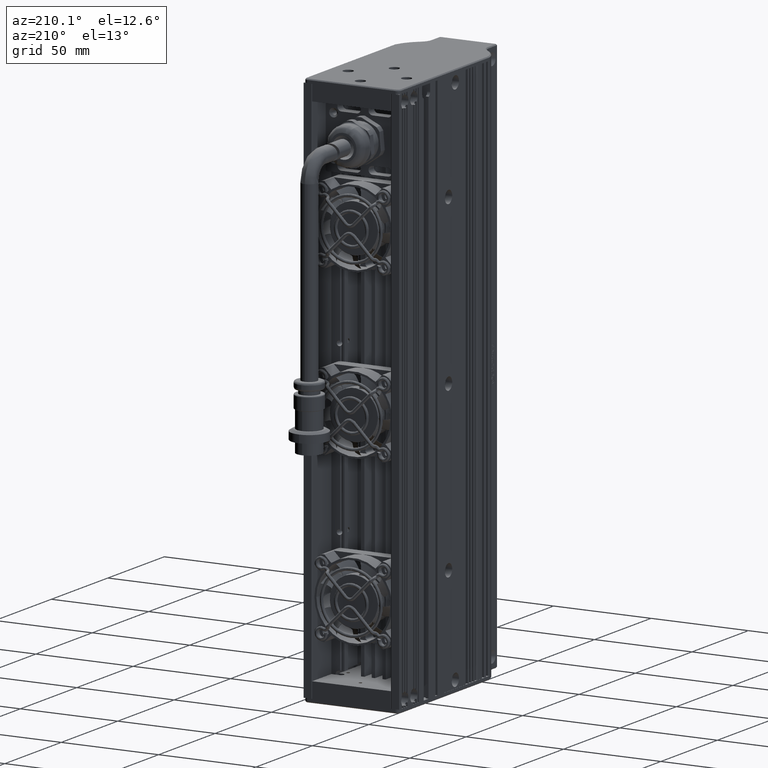
[diagram: clean part render]
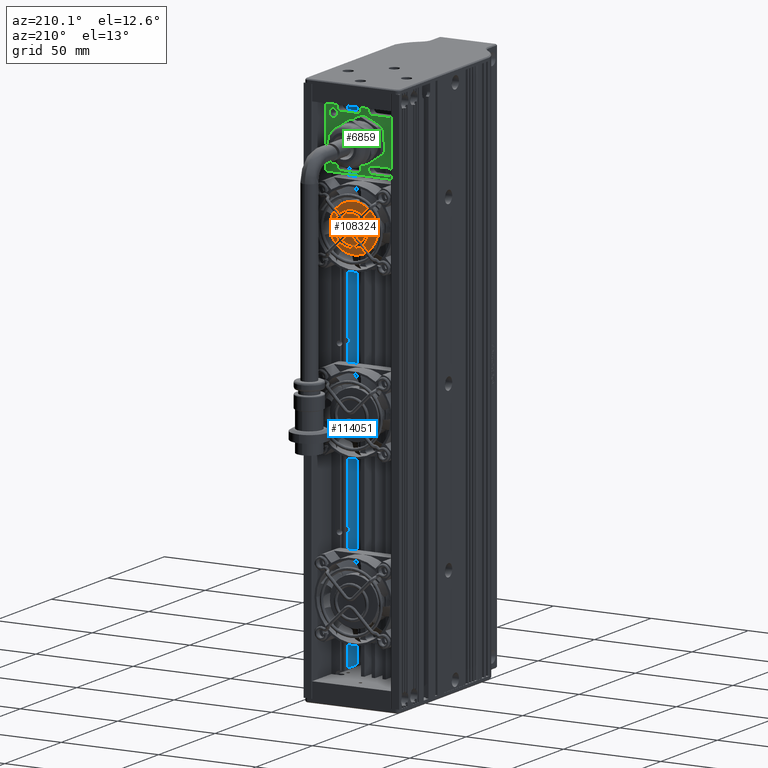
[diagram: same view with three faces highlighted in distinct colors, each labeled with its STEP entity id]
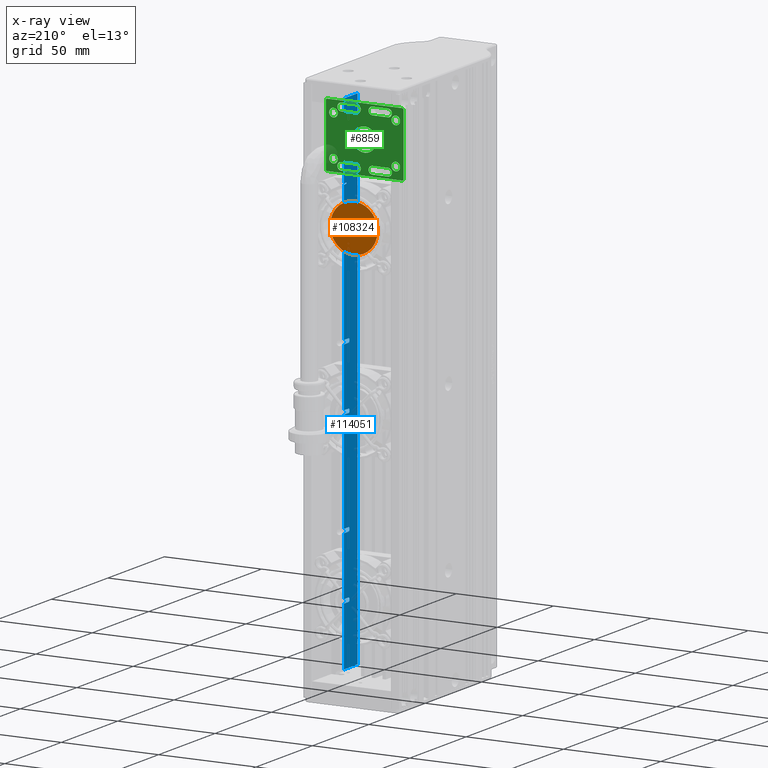
[diagram: x-ray of the same camera — body ghosted, the three highlighted faces saturated]
A machine part, auxiliary view with three faces highlighted in distinct colors.
The next image is the same camera in x-ray (body ghosted, the three faces saturated) — at least one of them is partly hidden behind the body in this view.
Their STEP definitions:

[orange] entity #108324 — the highlighted planar face has unit normal (0, 1, 0).
#13605 = CARTESIAN_POINT ( 'NONE',  ( -49.61201180637552000, 41.50452420306966400, 76.00000000000002800 ) ) ;
#14027 = CARTESIAN_POINT ( 'NONE',  ( -49.61201180637549900, 41.50452420306966400, 100.4000000000000300 ) ) ;
#15420 = PLANE ( 'NONE',  #55164 ) ;
#15845 = CARTESIAN_POINT ( 'NONE',  ( -37.41201180637546700, 41.50452420306965700, 63.60000000000001600 ) ) ;
#17464 = EDGE_LOOP ( 'NONE', ( #116713, #63177 ) ) ;
#30858 =( BOUNDED_CURVE ( )  B_SPLINE_CURVE ( 3, ( #53139, #91117, #102401, #32128 ),
 .UNSPECIFIED., .F., .F. ) 
 B_SPLINE_CURVE_WITH_KNOTS ( ( 4, 4 ),
 ( 0.0000000000000000000, 1.000000000000000000 ),
 .UNSPECIFIED. ) 
 CURVE ( )  GEOMETRIC_REPRESENTATION_ITEM ( )  RATIONAL_B_SPLINE_CURVE ( ( 1.000000000000000000, 0.3333333333333333700, 0.3333333333333333700, 1.000000000000000000 ) ) 
 REPRESENTATION_ITEM ( '' )  );
#32128 = CARTESIAN_POINT ( 'NONE',  ( -25.21201180637551800, 41.50452420306965000, 76.00000000000000000 ) ) ;
#35694 = DIRECTION ( 'NONE',  ( 7.709882115452475200E-016, 1.000000000000000000, 0.0000000000000000000 ) ) ;
#37364 = VERTEX_POINT ( 'NONE', #122455 ) ;
#53139 = CARTESIAN_POINT ( 'NONE',  ( -49.61201180637552000, 41.50452420306966400, 76.00000000000002800 ) ) ;
#55164 = AXIS2_PLACEMENT_3D ( 'NONE', #15845, #35694, #95164 ) ;
#61745 = EDGE_CURVE ( 'NONE', #37364, #92009, #30858, .T. ) ;
#62714 = CARTESIAN_POINT ( 'NONE',  ( -25.21201180637548900, 41.50452420306965000, 100.3999999999999900 ) ) ;
#63177 = ORIENTED_EDGE ( 'NONE', *, *, #115103, .F. ) ;
#68207 = CARTESIAN_POINT ( 'NONE',  ( -25.21201180637551800, 41.50452420306965000, 76.00000000000000000 ) ) ;
#91117 = CARTESIAN_POINT ( 'NONE',  ( -49.61201180637556300, 41.50452420306966400, 51.60000000000003700 ) ) ;
#92009 = VERTEX_POINT ( 'NONE', #68207 ) ;
#92039 = CARTESIAN_POINT ( 'NONE',  ( -25.21201180637551800, 41.50452420306965000, 76.00000000000000000 ) ) ;
#94938 =( BOUNDED_CURVE ( )  B_SPLINE_CURVE ( 3, ( #92039, #62714, #14027, #13605 ),
 .UNSPECIFIED., .F., .F. ) 
 B_SPLINE_CURVE_WITH_KNOTS ( ( 4, 4 ),
 ( 0.0000000000000000000, 1.000000000000000000 ),
 .UNSPECIFIED. ) 
 CURVE ( )  GEOMETRIC_REPRESENTATION_ITEM ( )  RATIONAL_B_SPLINE_CURVE ( ( 1.000000000000000000, 0.3333333333333333700, 0.3333333333333333700, 1.000000000000000000 ) ) 
 REPRESENTATION_ITEM ( '' )  );
#95164 = DIRECTION ( 'NONE',  ( 1.000000000000000000, -7.709882115452475200E-016, -7.709882115452475200E-016 ) ) ;
#102401 = CARTESIAN_POINT ( 'NONE',  ( -25.21201180637555000, 41.50452420306965000, 51.60000000000001600 ) ) ;
#108324 = ADVANCED_FACE ( 'NONE', ( #123741 ), #15420, .T. ) ;
#115103 = EDGE_CURVE ( 'NONE', #92009, #37364, #94938, .T. ) ;
#116713 = ORIENTED_EDGE ( 'NONE', *, *, #61745, .F. ) ;
#122455 = CARTESIAN_POINT ( 'NONE',  ( -49.61201180637552000, 41.50452420306966400, 76.00000000000002800 ) ) ;
#123741 = FACE_OUTER_BOUND ( 'NONE', #17464, .T. ) ;

[blue] entity #114051 — the highlighted planar face has unit normal (-1, 0, 0).
#1376 = EDGE_CURVE ( 'NONE', #109032, #85294, #88587, .T. ) ;
#1497 = CARTESIAN_POINT ( 'NONE',  ( -22.16201180637544600, 2.004524203069662400, -98.00000000000000000 ) ) ;
#1502 = VERTEX_POINT ( 'NONE', #117954 ) ;
#1575 = CARTESIAN_POINT ( 'NONE',  ( -22.16201180637544600, 24.00452420306966100, -14.00000000000000900 ) ) ;
#1865 = CARTESIAN_POINT ( 'NONE',  ( -22.16201180637544600, 24.00452420306966100, 18.00000000000000400 ) ) ;
#3675 = LINE ( 'NONE', #90593, #36164 ) ;
#4479 = CARTESIAN_POINT ( 'NONE',  ( -22.16201180637543900, 21.77441886626611400, 90.90786262034238500 ) ) ;
#4958 = VERTEX_POINT ( 'NONE', #85363 ) ;
#5211 = CARTESIAN_POINT ( 'NONE',  ( -22.16201180637544600, 24.00452420306966100, -66.00000000000000000 ) ) ;
#5788 = CARTESIAN_POINT ( 'NONE',  ( -22.16201180637544600, 19.35640198461898700, -67.68050296101182500 ) ) ;
#5891 = CARTESIAN_POINT ( 'NONE',  ( -22.16201180637544300, 19.24354415349486700, 19.34867306075772900 ) ) ;
#6866 = VECTOR ( 'NONE', #69041, 1000.000000000000000 ) ;
#7495 = CARTESIAN_POINT ( 'NONE',  ( -22.16201180637544600, 24.00452420306966100, 140.0000000000000000 ) ) ;
#7722 = CARTESIAN_POINT ( 'NONE',  ( -22.16201180637544600, 19.50452420306785900, -100.0000000000008700 ) ) ;
#7953 = DIRECTION ( 'NONE',  ( -0.0000000000000000000, -1.000000000000000000, 0.0000000000000000000 ) ) ;
#7998 = EDGE_CURVE ( 'NONE', #120357, #115823, #32894, .T. ) ;
#8529 = VERTEX_POINT ( 'NONE', #1865 ) ;
#8794 = VERTEX_POINT ( 'NONE', #103768 ) ;
#9042 = CARTESIAN_POINT ( 'NONE',  ( -22.16201180637544600, 2.004524203069662400, 18.00000000000000400 ) ) ;
#9596 = ORIENTED_EDGE ( 'NONE', *, *, #25809, .T. ) ;
#10293 = VERTEX_POINT ( 'NONE', #97841 ) ;
#12065 = EDGE_CURVE ( 'NONE', #45138, #41774, #92734, .T. ) ;
#13058 = ORIENTED_EDGE ( 'NONE', *, *, #7998, .T. ) ;
#13165 = EDGE_CURVE ( 'NONE', #4958, #113018, #36529, .T. ) ;
#13665 = CARTESIAN_POINT ( 'NONE',  ( -22.16201180637544600, 19.50452420306361400, -12.00000000000001400 ) ) ;
#13739 = EDGE_CURVE ( 'NONE', #14582, #109032, #3675, .T. ) ;
#14045 = CARTESIAN_POINT ( 'NONE',  ( -22.16201180637544600, 19.50452420303862100, -66.00000000000000000 ) ) ;
#14119 = AXIS2_PLACEMENT_3D ( 'NONE', #32036, #73730, #14759 ) ;
#14439 = CARTESIAN_POINT ( 'NONE',  ( -22.16201180637544600, 21.80452420308598200, 90.72161178186191000 ) ) ;
#14518 = CARTESIAN_POINT ( 'NONE',  ( -22.16201180637544600, 24.00452420306966100, 140.0000000000000000 ) ) ;
#14582 = VERTEX_POINT ( 'NONE', #71741 ) ;
#14759 = DIRECTION ( 'NONE',  ( 0.0000000000000000000, 0.0000000000000000000, 1.000000000000000000 ) ) ;
#15333 = CARTESIAN_POINT ( 'NONE',  ( -22.16201180637545000, 19.27197850113411100, -67.43230094389953400 ) ) ;
#15358 = ORIENTED_EDGE ( 'NONE', *, *, #1376, .T. ) ;
#15863 = CARTESIAN_POINT ( 'NONE',  ( -22.16201180637544300, 19.20409340479567800, 19.17483694745068600 ) ) ;
#16176 = EDGE_CURVE ( 'NONE', #103040, #127871, #46966, .T. ) ;
#16410 = EDGE_CURVE ( 'NONE', #32923, #54114, #74753, .T. ) ;
#16664 = CARTESIAN_POINT ( 'NONE',  ( -22.16201180637544600, 19.35640198466788300, -13.68050296099678700 ) ) ;
#17984 = CARTESIAN_POINT ( 'NONE',  ( -22.16201180637544600, 19.50452420305986600, 17.99999999999528600 ) ) ;
#18535 = CARTESIAN_POINT ( 'NONE',  ( -22.16201180637544600, 19.42830135190585100, -98.15857015905210400 ) ) ;
#18953 = CARTESIAN_POINT ( 'NONE',  ( -22.16201180637544600, 2.004524203069662400, 90.72161178185849900 ) ) ;
#19205 = CARTESIAN_POINT ( 'NONE',  ( -22.16201180637544600, 21.80452420303035100, 69.72161178185029900 ) ) ;
#19445 = DIRECTION ( 'NONE',  ( 0.0000000000000000000, 1.000000000000000000, -0.0000000000000000000 ) ) ;
#19774 = CARTESIAN_POINT ( 'NONE',  ( -22.16201180637544600, 2.004524203069662400, 70.27838821814150100 ) ) ;
#21673 = EDGE_CURVE ( 'NONE', #104798, #107078, #118473, .T. ) ;
#21752 = EDGE_CURVE ( 'NONE', #107078, #1502, #34886, .T. ) ;
#22077 = PLANE ( 'NONE',  #14119 ) ;
#22326 = ORIENTED_EDGE ( 'NONE', *, *, #13739, .T. ) ;
#22845 = CARTESIAN_POINT ( 'NONE',  ( -22.16201180637544600, 24.00452420306966100, -12.00000000000001400 ) ) ;
#23228 = CARTESIAN_POINT ( 'NONE',  ( -22.16201180637544600, 24.00452420306966100, 140.0000000000000000 ) ) ;
#25359 = CARTESIAN_POINT ( 'NONE',  ( -22.16201180637544600, 19.50452420305759600, 19.99999999999997500 ) ) ;
#25385 = CARTESIAN_POINT ( 'NONE',  ( -22.16201180637544600, 21.80452420302863100, 70.27838821814150100 ) ) ;
#25809 = EDGE_CURVE ( 'NONE', #111209, #84913, #87968, .T. ) ;
#25874 = VERTEX_POINT ( 'NONE', #40868 ) ;
#26548 = EDGE_CURVE ( 'NONE', #106580, #88991, #83299, .T. ) ;
#27294 = LINE ( 'NONE', #27427, #88925 ) ;
#27427 = CARTESIAN_POINT ( 'NONE',  ( -22.16201180637544600, 2.004524203069662400, -130.0000000000000000 ) ) ;
#28116 = EDGE_CURVE ( 'NONE', #77341, #8529, #96356, .T. ) ;
#28457 = CARTESIAN_POINT ( 'NONE',  ( -22.16201180637544300, 19.20409340483163900, -98.82516305255025200 ) ) ;
#28957 = CARTESIAN_POINT ( 'NONE',  ( -22.16201180635331300, 21.78526959821460800, 70.18630086223062400 ) ) ;
#29001 = ORIENTED_EDGE ( 'NONE', *, *, #79901, .T. ) ;
#31293 = EDGE_CURVE ( 'NONE', #25874, #32923, #35750, .T. ) ;
#32036 = CARTESIAN_POINT ( 'NONE',  ( -22.16201180637544600, 2.004524203069662400, 140.0000000000000000 ) ) ;
#32894 = LINE ( 'NONE', #18953, #113145 ) ;
#32923 = VERTEX_POINT ( 'NONE', #73711 ) ;
#33443 = VECTOR ( 'NONE', #100317, 1000.000000000000000 ) ;
#33525 = CARTESIAN_POINT ( 'NONE',  ( -22.16201180637543900, 19.24354415356739200, -12.65132693925075500 ) ) ;
#33557 = EDGE_CURVE ( 'NONE', #111280, #77341, #45697, .T. ) ;
#34369 = DIRECTION ( 'NONE',  ( -0.0000000000000000000, -0.0000000000000000000, -1.000000000000000000 ) ) ;
#34886 = LINE ( 'NONE', #1497, #57958 ) ;
#35651 = CARTESIAN_POINT ( 'NONE',  ( -22.16201180637544300, 19.27197850118843200, -13.43230094388795800 ) ) ;
#35750 = LINE ( 'NONE', #75325, #119224 ) ;
#36019 = CARTESIAN_POINT ( 'NONE',  ( -22.16201180637544600, 19.20409413780448900, -67.08742370660320400 ) ) ;
#36164 = VECTOR ( 'NONE', #71573, 1000.000000000000000 ) ;
#36529 = LINE ( 'NONE', #40782, #33443 ) ;
#37290 = DIRECTION ( 'NONE',  ( -0.0000000000000000000, -0.0000000000000000000, -1.000000000000000000 ) ) ;
#37317 = CARTESIAN_POINT ( 'NONE',  ( -22.16201180637544600, 19.42835517175886300, -13.84154180503074200 ) ) ;
#37425 = DIRECTION ( 'NONE',  ( -0.0000000000000000000, -0.0000000000000000000, -1.000000000000000000 ) ) ;
#37762 = CARTESIAN_POINT ( 'NONE',  ( -22.16201180637544600, 24.00452420306966100, -98.00000000000000000 ) ) ;
#38253 = DIRECTION ( 'NONE',  ( -0.0000000000000000000, -0.0000000000000000000, -1.000000000000000000 ) ) ;
#38659 = ORIENTED_EDGE ( 'NONE', *, *, #94060, .T. ) ;
#38861 = CARTESIAN_POINT ( 'NONE',  ( -22.16201180637544600, 21.80452420303035100, 69.72161178185029900 ) ) ;
#39683 = VECTOR ( 'NONE', #37425, 1000.000000000000000 ) ;
#40782 = CARTESIAN_POINT ( 'NONE',  ( -22.16201180637544600, 2.004524203069662400, 91.27838821814148700 ) ) ;
#40795 = VERTEX_POINT ( 'NONE', #22845 ) ;
#40868 = CARTESIAN_POINT ( 'NONE',  ( -22.16201180637544600, 19.50452420306785900, -100.0000000000008700 ) ) ;
#41774 = VERTEX_POINT ( 'NONE', #98054 ) ;
#42484 = CARTESIAN_POINT ( 'NONE',  ( -22.16201180637544600, 21.80452420308669700, 91.27838821814148700 ) ) ;
#43423 = CARTESIAN_POINT ( 'NONE',  ( -22.16201180637544300, 19.20409340487981700, -12.82516305255716900 ) ) ;
#45059 = CARTESIAN_POINT ( 'NONE',  ( -22.16201180637543900, 19.24354415350887800, -66.65132693924934400 ) ) ;
#45138 = VERTEX_POINT ( 'NONE', #99109 ) ;
#45175 = CARTESIAN_POINT ( 'NONE',  ( -22.16201180637544600, 19.35659622424978100, 19.68110591036902000 ) ) ;
#45584 = LINE ( 'NONE', #14518, #71745 ) ;
#45697 = B_SPLINE_CURVE_WITH_KNOTS ( 'NONE', 3,
 ( #25359, #65014, #45175, #5891, #15863, #114699, #93446, #97283, #56749, #125937, #76127, #17984 ),
 .UNSPECIFIED., .F., .F.,
 ( 4, 2, 2, 2, 2, 4 ),
 ( 5.672349479352040000E-015, 0.0005262199254034081700, 0.001052439850801144000, 0.001315549813500006800, 0.001578659776198869300, 0.002104879701596598600 ),
 .UNSPECIFIED. ) ;
#46444 = ORIENTED_EDGE ( 'NONE', *, *, #90548, .T. ) ;
#46566 = DIRECTION ( 'NONE',  ( 0.0000000000000000000, 1.000000000000000000, -0.0000000000000000000 ) ) ;
#46966 = LINE ( 'NONE', #23228, #70030 ) ;
#50261 = CARTESIAN_POINT ( 'NONE',  ( -22.16201180637544600, 24.00452420306966100, 69.72161178185851300 ) ) ;
#51300 = ORIENTED_EDGE ( 'NONE', *, *, #16410, .T. ) ;
#51701 = VECTOR ( 'NONE', #38253, 1000.000000000000000 ) ;
#52331 = VECTOR ( 'NONE', #59119, 1000.000000000000000 ) ;
#52873 = CARTESIAN_POINT ( 'NONE',  ( -22.16201180637544600, 2.004524203069662400, -12.00000000000001100 ) ) ;
#53205 = EDGE_CURVE ( 'NONE', #10293, #8794, #78499, .T. ) ;
#53284 = CARTESIAN_POINT ( 'NONE',  ( -22.16201180637544600, 19.21380403890912400, -13.17633270588486600 ) ) ;
#53481 = ORIENTED_EDGE ( 'NONE', *, *, #31293, .T. ) ;
#53769 = DIRECTION ( 'NONE',  ( -0.0000000000000000000, -0.0000000000000000000, -1.000000000000000000 ) ) ;
#54114 = VERTEX_POINT ( 'NONE', #64641 ) ;
#54527 = DIRECTION ( 'NONE',  ( 0.0000000000000000000, 1.000000000000000000, -0.0000000000000000000 ) ) ;
#56749 = CARTESIAN_POINT ( 'NONE',  ( -22.16201180637544600, 19.27197850112206700, 18.56769905610674300 ) ) ;
#57771 = EDGE_CURVE ( 'NONE', #113018, #120357, #94883, .T. ) ;
#57958 = VECTOR ( 'NONE', #89452, 1000.000000000000000 ) ;
#59119 = DIRECTION ( 'NONE',  ( -0.0000000000000000000, -1.000000000000000000, 0.0000000000000000000 ) ) ;
#59324 = CARTESIAN_POINT ( 'NONE',  ( -22.16201180637544600, 19.50452420305759600, 19.99999999999997500 ) ) ;
#59924 = ORIENTED_EDGE ( 'NONE', *, *, #74250, .T. ) ;
#60414 = CARTESIAN_POINT ( 'NONE',  ( -22.16201180637544600, 2.004524203069662400, -66.00000000000000000 ) ) ;
#60520 = CARTESIAN_POINT ( 'NONE',  ( -22.16201180637544600, 19.50452420305986600, 17.99999999999528600 ) ) ;
#61307 = EDGE_CURVE ( 'NONE', #115823, #111209, #45584, .T. ) ;
#62706 = CARTESIAN_POINT ( 'NONE',  ( -22.16201180638463000, 21.78526959830729500, 91.18630086221600100 ) ) ;
#64379 = CARTESIAN_POINT ( 'NONE',  ( -22.16201180637544600, 24.00452420306966100, 140.0000000000000000 ) ) ;
#64641 = CARTESIAN_POINT ( 'NONE',  ( -22.16201180637544300, 24.00452420306966400, -130.0000000000000000 ) ) ;
#64783 = ORIENTED_EDGE ( 'NONE', *, *, #72604, .T. ) ;
#64904 = CARTESIAN_POINT ( 'NONE',  ( -22.16201180637544600, 19.20409340481908000, -66.82516305255832400 ) ) ;
#65014 = CARTESIAN_POINT ( 'NONE',  ( -22.16201180636849000, 19.42830135189007700, 19.84142984095366900 ) ) ;
#66016 = LINE ( 'NONE', #74604, #76720 ) ;
#67089 = ORIENTED_EDGE ( 'NONE', *, *, #16176, .T. ) ;
#67125 = CARTESIAN_POINT ( 'NONE',  ( -22.16201180637544600, 2.004524203069662400, 19.99999999999997500 ) ) ;
#67530 = CARTESIAN_POINT ( 'NONE',  ( -22.16201180637544600, 24.00452420306966100, 70.27838821814150100 ) ) ;
#68077 = CARTESIAN_POINT ( 'NONE',  ( -22.16201180637544600, 19.35640198464794500, -99.68050296099707500 ) ) ;
#68634 = CARTESIAN_POINT ( 'NONE',  ( -22.16201180637544600, 2.004524203069662400, 130.0000000000000000 ) ) ;
#69041 = DIRECTION ( 'NONE',  ( 0.0000000000000000000, 1.000000000000000000, -0.0000000000000000000 ) ) ;
#69169 = VECTOR ( 'NONE', #53769, 1000.000000000000000 ) ;
#69868 = ORIENTED_EDGE ( 'NONE', *, *, #125570, .T. ) ;
#70030 = VECTOR ( 'NONE', #123376, 1000.000000000000000 ) ;
#71573 = DIRECTION ( 'NONE',  ( 0.0000000000000000000, -0.0000000000000000000, 1.000000000000000000 ) ) ;
#71741 = CARTESIAN_POINT ( 'NONE',  ( -22.16201180637544300, 11.95452420306966300, -130.0000000000000000 ) ) ;
#71745 = VECTOR ( 'NONE', #34369, 1000.000000000000000 ) ;
#72115 = ORIENTED_EDGE ( 'NONE', *, *, #21752, .T. ) ;
#72604 = EDGE_CURVE ( 'NONE', #85294, #4958, #83048, .T. ) ;
#73039 = CARTESIAN_POINT ( 'NONE',  ( -22.16201180637544600, 19.24793158253240900, -13.34835558666692800 ) ) ;
#73207 = B_SPLINE_CURVE_WITH_KNOTS ( 'NONE', 3,
 ( #87082, #28957, #97071, #126563, #107070, #38861 ),
 .UNSPECIFIED., .F., .F.,
 ( 4, 2, 4 ),
 ( 1.260064158383260400E-014, 0.0002786419507183689800, 0.0005572839014241372600 ),
 .UNSPECIFIED. ) ;
#73711 = CARTESIAN_POINT ( 'NONE',  ( -22.16201180637544600, 24.00452420306966100, -100.0000000000000000 ) ) ;
#73730 = DIRECTION ( 'NONE',  ( -1.000000000000000000, 0.0000000000000000000, 0.0000000000000000000 ) ) ;
#74250 = EDGE_CURVE ( 'NONE', #40795, #45138, #107219, .T. ) ;
#74301 = CARTESIAN_POINT ( 'NONE',  ( -22.16201180637544600, 19.24793158247644300, -67.34835558667737100 ) ) ;
#74604 = CARTESIAN_POINT ( 'NONE',  ( -22.16201180637544600, 2.004524203069662400, -14.00000000000001200 ) ) ;
#74726 = CARTESIAN_POINT ( 'NONE',  ( -22.16201180637544600, 19.21380403885050100, -67.17633270589323000 ) ) ;
#74753 = LINE ( 'NONE', #97308, #51701 ) ;
#75325 = CARTESIAN_POINT ( 'NONE',  ( -22.16201180637544600, 2.004524203069662400, -100.0000000000000000 ) ) ;
#76127 = CARTESIAN_POINT ( 'NONE',  ( -22.16201180637544600, 19.42835517173174200, 18.15845819496228200 ) ) ;
#76299 = B_SPLINE_CURVE_WITH_KNOTS ( 'NONE', 3,
 ( #77535, #18535, #87446, #126502, #28457, #127361, #107845, #78366, #88288, #68077, #97423, #7722 ),
 .UNSPECIFIED., .F., .F.,
 ( 4, 2, 2, 2, 2, 4 ),
 ( 1.115932929006392600E-015, 0.0005262199253936781100, 0.001052439850786240100, 0.001315549813482542000, 0.001578659776178843900, 0.002104879701571411700 ),
 .UNSPECIFIED. ) ;
#76720 = VECTOR ( 'NONE', #83274, 1000.000000000000000 ) ;
#77005 = CARTESIAN_POINT ( 'NONE',  ( -22.16201180637544600, 24.00452420306966100, 140.0000000000000000 ) ) ;
#77341 = VERTEX_POINT ( 'NONE', #60520 ) ;
#77535 = CARTESIAN_POINT ( 'NONE',  ( -22.16201180637544600, 19.50452420306744400, -98.00000000000000000 ) ) ;
#77728 = EDGE_CURVE ( 'NONE', #41774, #106580, #66016, .T. ) ;
#78234 = ORIENTED_EDGE ( 'NONE', *, *, #13165, .T. ) ;
#78366 = CARTESIAN_POINT ( 'NONE',  ( -22.16201180637544600, 19.24793158249223500, -99.34835558666738100 ) ) ;
#78499 = B_SPLINE_CURVE_WITH_KNOTS ( 'NONE', 3,
 ( #14045, #125402, #105094, #45059, #64904, #36019, #74726, #74301, #15333, #5788, #113737, #94204 ),
 .UNSPECIFIED., .F., .F.,
 ( 4, 2, 2, 2, 2, 4 ),
 ( 1.457393051238396500E-014, 0.0005262199254078926500, 0.001052439850801211200, 0.001315549813497870700, 0.001578659776194529900, 0.002104879701587888500 ),
 .UNSPECIFIED. ) ;
#78500 = LINE ( 'NONE', #60414, #52331 ) ;
#79404 = CARTESIAN_POINT ( 'NONE',  ( -22.16201180637544600, 21.80452420308669700, 91.27838821814148700 ) ) ;
#79901 = EDGE_CURVE ( 'NONE', #98169, #103040, #101829, .T. ) ;
#80857 = VECTOR ( 'NONE', #112523, 1000.000000000000000 ) ;
#82590 = CARTESIAN_POINT ( 'NONE',  ( -22.16201180637544300, 19.42830135191221400, -12.15857015905242200 ) ) ;
#82894 = FACE_OUTER_BOUND ( 'NONE', #89989, .T. ) ;
#83048 = LINE ( 'NONE', #112970, #69169 ) ;
#83274 = DIRECTION ( 'NONE',  ( 0.0000000000000000000, 1.000000000000000000, -0.0000000000000000000 ) ) ;
#83299 = LINE ( 'NONE', #64379, #125091 ) ;
#84703 = ORIENTED_EDGE ( 'NONE', *, *, #123780, .T. ) ;
#84913 = VERTEX_POINT ( 'NONE', #25385 ) ;
#85033 = ORIENTED_EDGE ( 'NONE', *, *, #21673, .T. ) ;
#85290 = ORIENTED_EDGE ( 'NONE', *, *, #53205, .T. ) ;
#85294 = VERTEX_POINT ( 'NONE', #103362 ) ;
#85363 = CARTESIAN_POINT ( 'NONE',  ( -22.16201180637544600, 24.00452420306966100, 91.27838821814148700 ) ) ;
#85673 = DIRECTION ( 'NONE',  ( 0.0000000000000000000, 1.000000000000000000, -0.0000000000000000000 ) ) ;
#86704 = LINE ( 'NONE', #67125, #122420 ) ;
#87082 = CARTESIAN_POINT ( 'NONE',  ( -22.16201180637544600, 21.80452420302863100, 70.27838821814150100 ) ) ;
#87288 = LINE ( 'NONE', #90402, #115191 ) ;
#87446 = CARTESIAN_POINT ( 'NONE',  ( -22.16201180637544600, 19.35659622427601800, -98.31889408963439800 ) ) ;
#87968 = LINE ( 'NONE', #19774, #97305 ) ;
#88288 = CARTESIAN_POINT ( 'NONE',  ( -22.16201180637544300, 19.27197850115269200, -99.43230094388826500 ) ) ;
#88333 = ORIENTED_EDGE ( 'NONE', *, *, #105765, .T. ) ;
#88587 = LINE ( 'NONE', #68634, #6866 ) ;
#88925 = VECTOR ( 'NONE', #7953, 1000.000000000000000 ) ;
#88991 = VERTEX_POINT ( 'NONE', #5211 ) ;
#89452 = DIRECTION ( 'NONE',  ( -0.0000000000000000000, -1.000000000000000000, 0.0000000000000000000 ) ) ;
#89527 = DIRECTION ( 'NONE',  ( 0.0000000000000000000, 1.000000000000000000, -0.0000000000000000000 ) ) ;
#89989 = EDGE_LOOP ( 'NONE', ( #51300, #106317, #22326, #15358, #64783, #78234, #119511, #13058, #94502, #9596, #84703, #29001, #67089, #46444, #117522, #92087, #118591, #59924, #102695, #116110, #106457, #69868, #85290, #38659, #85033, #72115, #88333, #53481 ) ) ;
#90390 = CARTESIAN_POINT ( 'NONE',  ( -22.16201180637544300, 11.95452420306966300, 130.0000000000000000 ) ) ;
#90402 = CARTESIAN_POINT ( 'NONE',  ( -22.16201180637544600, 2.004524203069662400, -68.00000000000000000 ) ) ;
#90548 = EDGE_CURVE ( 'NONE', #127871, #111280, #86704, .T. ) ;
#90593 = CARTESIAN_POINT ( 'NONE',  ( -22.16201180637544600, 11.95452420306966300, 140.0000000000000000 ) ) ;
#92087 = ORIENTED_EDGE ( 'NONE', *, *, #28116, .T. ) ;
#92537 = CARTESIAN_POINT ( 'NONE',  ( -22.16201180637543900, 19.35659622429394500, -12.31889408963926700 ) ) ;
#92734 = B_SPLINE_CURVE_WITH_KNOTS ( 'NONE', 3,
 ( #13665, #82590, #92537, #33525, #43423, #112510, #53284, #73039, #35651, #16664, #37317, #125446 ),
 .UNSPECIFIED., .F., .F.,
 ( 4, 2, 2, 2, 2, 4 ),
 ( 3.042044741080486600E-015, 0.0005262199253880496900, 0.001052439850773057300, 0.001315549813465563600, 0.001578659776158069900, 0.002104879701543079300 ),
 .UNSPECIFIED. ) ;
#93299 = CARTESIAN_POINT ( 'NONE',  ( -22.16201180637544600, 21.77454404359301400, 91.09381786616191300 ) ) ;
#93446 = CARTESIAN_POINT ( 'NONE',  ( -22.16201180637544600, 19.21380403882795600, 18.82366729410970400 ) ) ;
#94060 = EDGE_CURVE ( 'NONE', #8794, #104798, #87288, .T. ) ;
#94204 = CARTESIAN_POINT ( 'NONE',  ( -22.16201180637544600, 19.50452420304444300, -68.00000000001213600 ) ) ;
#94502 = ORIENTED_EDGE ( 'NONE', *, *, #61307, .T. ) ;
#94883 = B_SPLINE_CURVE_WITH_KNOTS ( 'NONE', 3,
 ( #42484, #62706, #93299, #4479, #112000, #14439 ),
 .UNSPECIFIED., .F., .F.,
 ( 4, 2, 4 ),
 ( 5.223696850537543100E-015, 0.0002786419506943732600, 0.0005572839013835228300 ),
 .UNSPECIFIED. ) ;
#96356 = LINE ( 'NONE', #9042, #99477 ) ;
#97071 = CARTESIAN_POINT ( 'NONE',  ( -22.16201180637544600, 21.77454404348192800, 70.09381786616475600 ) ) ;
#97283 = CARTESIAN_POINT ( 'NONE',  ( -22.16201180637544600, 19.24793158245999100, 18.65164441332803200 ) ) ;
#97305 = VECTOR ( 'NONE', #118612, 1000.000000000000000 ) ;
#97308 = CARTESIAN_POINT ( 'NONE',  ( -22.16201180637544600, 24.00452420306966100, 140.0000000000000000 ) ) ;
#97423 = CARTESIAN_POINT ( 'NONE',  ( -22.16201180637544600, 19.42835517175220500, -99.84154180503043100 ) ) ;
#97841 = CARTESIAN_POINT ( 'NONE',  ( -22.16201180637544600, 19.50452420303862100, -66.00000000000000000 ) ) ;
#98054 = CARTESIAN_POINT ( 'NONE',  ( -22.16201180637544600, 19.50452420306475100, -14.00000000000237700 ) ) ;
#98169 = VERTEX_POINT ( 'NONE', #19205 ) ;
#98652 = VECTOR ( 'NONE', #54527, 1000.000000000000000 ) ;
#99109 = CARTESIAN_POINT ( 'NONE',  ( -22.16201180637544600, 19.50452420306361400, -12.00000000000001400 ) ) ;
#99416 = CARTESIAN_POINT ( 'NONE',  ( -22.16201180637544600, 24.00452420306966100, 90.72161178185849900 ) ) ;
#99477 = VECTOR ( 'NONE', #19445, 1000.000000000000000 ) ;
#100317 = DIRECTION ( 'NONE',  ( -0.0000000000000000000, -1.000000000000000000, 0.0000000000000000000 ) ) ;
#101829 = LINE ( 'NONE', #113729, #98652 ) ;
#102052 = EDGE_CURVE ( 'NONE', #8529, #40795, #116431, .T. ) ;
#102695 = ORIENTED_EDGE ( 'NONE', *, *, #12065, .T. ) ;
#103024 = CARTESIAN_POINT ( 'NONE',  ( -22.16201180637544600, 24.00452420306966100, 19.99999999999997500 ) ) ;
#103040 = VERTEX_POINT ( 'NONE', #50261 ) ;
#103362 = CARTESIAN_POINT ( 'NONE',  ( -22.16201180637544300, 24.00452420306966400, 130.0000000000000000 ) ) ;
#103768 = CARTESIAN_POINT ( 'NONE',  ( -22.16201180637544600, 19.50452420304444300, -68.00000000001213600 ) ) ;
#104798 = VERTEX_POINT ( 'NONE', #122496 ) ;
#105094 = CARTESIAN_POINT ( 'NONE',  ( -22.16201180637544600, 19.35659622424119800, -66.31889408963357400 ) ) ;
#105765 = EDGE_CURVE ( 'NONE', #1502, #25874, #76299, .T. ) ;
#106317 = ORIENTED_EDGE ( 'NONE', *, *, #109380, .T. ) ;
#106457 = ORIENTED_EDGE ( 'NONE', *, *, #26548, .T. ) ;
#106580 = VERTEX_POINT ( 'NONE', #1575 ) ;
#107070 = CARTESIAN_POINT ( 'NONE',  ( -22.16201180637544600, 21.78524135329261600, 69.81383422228664400 ) ) ;
#107078 = VERTEX_POINT ( 'NONE', #37762 ) ;
#107219 = LINE ( 'NONE', #52873, #80857 ) ;
#107845 = CARTESIAN_POINT ( 'NONE',  ( -22.16201180637544600, 19.21380403886264800, -99.17633270588638100 ) ) ;
#109032 = VERTEX_POINT ( 'NONE', #90390 ) ;
#109380 = EDGE_CURVE ( 'NONE', #54114, #14582, #27294, .T. ) ;
#111209 = VERTEX_POINT ( 'NONE', #67530 ) ;
#111280 = VERTEX_POINT ( 'NONE', #59324 ) ;
#112000 = CARTESIAN_POINT ( 'NONE',  ( -22.16201180637544600, 21.78524135340342100, 90.81383422230219100 ) ) ;
#112510 = CARTESIAN_POINT ( 'NONE',  ( -22.16201180637544300, 19.20409413786420300, -13.08742370659654200 ) ) ;
#112523 = DIRECTION ( 'NONE',  ( -0.0000000000000000000, -1.000000000000000000, 0.0000000000000000000 ) ) ;
#112808 = DIRECTION ( 'NONE',  ( -0.0000000000000000000, -0.0000000000000000000, -1.000000000000000000 ) ) ;
#112970 = CARTESIAN_POINT ( 'NONE',  ( -22.16201180637544600, 24.00452420306966100, 140.0000000000000000 ) ) ;
#113018 = VERTEX_POINT ( 'NONE', #79404 ) ;
#113145 = VECTOR ( 'NONE', #46566, 1000.000000000000000 ) ;
#113729 = CARTESIAN_POINT ( 'NONE',  ( -22.16201180637544600, 2.004524203069662400, 69.72161178185851300 ) ) ;
#113737 = CARTESIAN_POINT ( 'NONE',  ( -22.16201180637544600, 19.42835517171405300, -67.84154180504795300 ) ) ;
#114051 = ADVANCED_FACE ( 'NONE', ( #82894 ), #22077, .T. ) ;
#114699 = CARTESIAN_POINT ( 'NONE',  ( -22.16201180637544600, 19.20409413777985800, 18.91257629340105200 ) ) ;
#115191 = VECTOR ( 'NONE', #89527, 1000.000000000000000 ) ;
#115823 = VERTEX_POINT ( 'NONE', #99416 ) ;
#116110 = ORIENTED_EDGE ( 'NONE', *, *, #77728, .T. ) ;
#116431 = LINE ( 'NONE', #7495, #121089 ) ;
#117522 = ORIENTED_EDGE ( 'NONE', *, *, #33557, .T. ) ;
#117954 = CARTESIAN_POINT ( 'NONE',  ( -22.16201180637544600, 19.50452420306744400, -98.00000000000000000 ) ) ;
#118473 = LINE ( 'NONE', #77005, #39683 ) ;
#118591 = ORIENTED_EDGE ( 'NONE', *, *, #102052, .T. ) ;
#118612 = DIRECTION ( 'NONE',  ( -0.0000000000000000000, -1.000000000000000000, 0.0000000000000000000 ) ) ;
#119224 = VECTOR ( 'NONE', #85673, 1000.000000000000000 ) ;
#119511 = ORIENTED_EDGE ( 'NONE', *, *, #57771, .T. ) ;
#120294 = DIRECTION ( 'NONE',  ( -0.0000000000000000000, -1.000000000000000000, 0.0000000000000000000 ) ) ;
#120357 = VERTEX_POINT ( 'NONE', #123934 ) ;
#121089 = VECTOR ( 'NONE', #37290, 1000.000000000000000 ) ;
#122420 = VECTOR ( 'NONE', #120294, 1000.000000000000000 ) ;
#122496 = CARTESIAN_POINT ( 'NONE',  ( -22.16201180637544600, 24.00452420306966100, -68.00000000000000000 ) ) ;
#123376 = DIRECTION ( 'NONE',  ( -0.0000000000000000000, -0.0000000000000000000, -1.000000000000000000 ) ) ;
#123780 = EDGE_CURVE ( 'NONE', #84913, #98169, #73207, .T. ) ;
#123934 = CARTESIAN_POINT ( 'NONE',  ( -22.16201180637544600, 21.80452420308598200, 90.72161178186191000 ) ) ;
#125091 = VECTOR ( 'NONE', #112808, 1000.000000000000000 ) ;
#125402 = CARTESIAN_POINT ( 'NONE',  ( -22.16201180635753700, 19.42830135187931600, -66.15857015903942800 ) ) ;
#125446 = CARTESIAN_POINT ( 'NONE',  ( -22.16201180637544600, 19.50452420306475100, -14.00000000000237700 ) ) ;
#125570 = EDGE_CURVE ( 'NONE', #88991, #10293, #78500, .T. ) ;
#125937 = CARTESIAN_POINT ( 'NONE',  ( -22.16201180637544600, 19.35640198462295900, 18.31949703899646700 ) ) ;
#126502 = CARTESIAN_POINT ( 'NONE',  ( -22.16201180637544300, 19.24354415352804500, -98.65132693924415700 ) ) ;
#126563 = CARTESIAN_POINT ( 'NONE',  ( -22.16201180637543900, 21.77441886615548200, 69.90786262033370200 ) ) ;
#127361 = CARTESIAN_POINT ( 'NONE',  ( -22.16201180637544600, 19.20409413781549900, -99.08742370659616900 ) ) ;
#127871 = VERTEX_POINT ( 'NONE', #103024 ) ;

[green] entity #6859 — the highlighted planar face has unit normal (0, -1, 0).
#46 = DIRECTION ( 'NONE',  ( -8.163404592832033000E-016, 1.000000000000000000, 0.0000000000000000000 ) ) ;
#480 = VECTOR ( 'NONE', #31659, 1000.000000000000000 ) ;
#539 = EDGE_LOOP ( 'NONE', ( #85464, #109021 ) ) ;
#2159 = CARTESIAN_POINT ( 'NONE',  ( -33.41201180637547500, 32.00452420306967800, 98.99999999999998600 ) ) ;
#2822 = VERTEX_POINT ( 'NONE', #76012 ) ;
#2991 = VERTEX_POINT ( 'NONE', #10871 ) ;
#3537 = AXIS2_PLACEMENT_3D ( 'NONE', #85183, #57126, #55471 ) ;
#3867 = DIRECTION ( 'NONE',  ( 0.0000000000000000000, 0.0000000000000000000, 1.000000000000000000 ) ) ;
#4081 = CARTESIAN_POINT ( 'NONE',  ( -17.41201180637547100, 32.00452420306970000, 130.4999999999999700 ) ) ;
#4372 = VERTEX_POINT ( 'NONE', #4081 ) ;
#5146 = VERTEX_POINT ( 'NONE', #79670 ) ;
#5866 = VECTOR ( 'NONE', #21019, 1000.000000000000100 ) ;
#6321 = CARTESIAN_POINT ( 'NONE',  ( -49.41201180637547500, 32.00452420306967100, 130.0000000000000000 ) ) ;
#6859 = ADVANCED_FACE ( 'NONE', ( #7058, #70198, #112261, #44061, #126016, #85860, #90268, #27278, #30386, #30243 ), #123597, .F. ) ;
#7005 = CARTESIAN_POINT ( 'NONE',  ( -33.41201180637547500, 32.00452420306967800, 130.0000000000000000 ) ) ;
#7058 = FACE_BOUND ( 'NONE', #104451, .T. ) ;
#7449 = CARTESIAN_POINT ( 'NONE',  ( -53.41201180637547500, 32.00452420310560300, 104.0000000000000000 ) ) ;
#7780 = CARTESIAN_POINT ( 'NONE',  ( -33.41201180637547500, 32.00452420306967800, 128.0000000000000000 ) ) ;
#7791 = CARTESIAN_POINT ( 'NONE',  ( -21.41201180637547500, 32.00452420310563200, 104.0000000000000000 ) ) ;
#7832 = DIRECTION ( 'NONE',  ( -8.163404592832033000E-016, 1.000000000000000000, 0.0000000000000000000 ) ) ;
#9492 = CARTESIAN_POINT ( 'NONE',  ( -33.41201180637547500, 32.00452420306967800, 103.0000000000000000 ) ) ;
#10871 = CARTESIAN_POINT ( 'NONE',  ( -21.41201180637547500, 32.00452420306969300, 127.1999999999952600 ) ) ;
#11067 = AXIS2_PLACEMENT_3D ( 'NONE', #82313, #102701, #3867 ) ;
#11789 = AXIS2_PLACEMENT_3D ( 'NONE', #88852, #46, #100594 ) ;
#11885 = AXIS2_PLACEMENT_3D ( 'NONE', #69903, #49272, #118415 ) ;
#12927 = EDGE_CURVE ( 'NONE', #111476, #63315, #31978, .T. ) ;
#13062 = VERTEX_POINT ( 'NONE', #68359 ) ;
#13488 = DIRECTION ( 'NONE',  ( 0.0000000000000000000, 0.0000000000000000000, -1.000000000000000000 ) ) ;
#14398 = VECTOR ( 'NONE', #35260, 1000.000000000000100 ) ;
#14953 = CARTESIAN_POINT ( 'NONE',  ( -53.41201180637547500, 32.00452420310560300, 101.7999999999838000 ) ) ;
#15081 = CARTESIAN_POINT ( 'NONE',  ( -17.41201180637547500, 32.00452420306969300, 131.0000000000000000 ) ) ;
#15377 = VERTEX_POINT ( 'NONE', #118364 ) ;
#15469 = ORIENTED_EDGE ( 'NONE', *, *, #28065, .T. ) ;
#15882 = CIRCLE ( 'NONE', #11789, 2.200000000016189000 ) ;
#16505 = DIRECTION ( 'NONE',  ( 0.0000000000000000000, 0.0000000000000000000, 1.000000000000000000 ) ) ;
#16749 = CARTESIAN_POINT ( 'NONE',  ( -57.41201180637548200, 32.00452420306966400, 98.50000000000000000 ) ) ;
#17687 = VERTEX_POINT ( 'NONE', #59938 ) ;
#18024 = LINE ( 'NONE', #68518, #58058 ) ;
#19092 = VERTEX_POINT ( 'NONE', #9492 ) ;
#19252 = DIRECTION ( 'NONE',  ( 1.000000000000000000, 8.163404592832033000E-016, 0.0000000000000000000 ) ) ;
#20485 = VERTEX_POINT ( 'NONE', #52441 ) ;
#20831 = AXIS2_PLACEMENT_3D ( 'NONE', #7449, #27335, #76409 ) ;
#20982 = EDGE_CURVE ( 'NONE', #20485, #54388, #95471, .T. ) ;
#21019 = DIRECTION ( 'NONE',  ( -0.7071067811865474600, -5.772398745160937000E-016, -0.7071067811865474600 ) ) ;
#21191 = VERTEX_POINT ( 'NONE', #39698 ) ;
#21290 = CIRCLE ( 'NONE', #33110, 2.000000000000001800 ) ;
#22019 = DIRECTION ( 'NONE',  ( 0.0000000000000000000, 0.0000000000000000000, -1.000000000000000000 ) ) ;
#22050 = DIRECTION ( 'NONE',  ( 8.163404592832033000E-016, -1.000000000000000000, 0.0000000000000000000 ) ) ;
#22444 = VERTEX_POINT ( 'NONE', #118902 ) ;
#22466 = DIRECTION ( 'NONE',  ( -1.000000000000000000, -8.163404592832033000E-016, -0.0000000000000000000 ) ) ;
#22788 = DIRECTION ( 'NONE',  ( 1.000000000000000000, 8.163404592832033000E-016, 0.0000000000000000000 ) ) ;
#24961 = AXIS2_PLACEMENT_3D ( 'NONE', #7791, #56961, #95815 ) ;
#25329 = ORIENTED_EDGE ( 'NONE', *, *, #120936, .F. ) ;
#25696 = LINE ( 'NONE', #47918, #82645 ) ;
#26322 = VERTEX_POINT ( 'NONE', #37752 ) ;
#26565 = VERTEX_POINT ( 'NONE', #103281 ) ;
#26636 = DIRECTION ( 'NONE',  ( 0.7071067811865549000, 5.772398745160997200E-016, -0.7071067811865401300 ) ) ;
#26772 = DIRECTION ( 'NONE',  ( 8.163404592832033000E-016, -1.000000000000000000, 0.0000000000000000000 ) ) ;
#27007 = EDGE_CURVE ( 'NONE', #51276, #86767, #118596, .T. ) ;
#27278 = FACE_BOUND ( 'NONE', #120590, .T. ) ;
#27335 = DIRECTION ( 'NONE',  ( -8.163404592832033000E-016, 1.000000000000000000, 0.0000000000000000000 ) ) ;
#27366 = LINE ( 'NONE', #106895, #32121 ) ;
#27674 = VERTEX_POINT ( 'NONE', #89341 ) ;
#27954 = VECTOR ( 'NONE', #83062, 1000.000000000000000 ) ;
#28065 = EDGE_CURVE ( 'NONE', #98477, #26565, #121266, .T. ) ;
#28534 = ORIENTED_EDGE ( 'NONE', *, *, #48654, .F. ) ;
#28923 = VERTEX_POINT ( 'NONE', #119749 ) ;
#30243 = FACE_BOUND ( 'NONE', #84299, .T. ) ;
#30313 = ORIENTED_EDGE ( 'NONE', *, *, #117104, .T. ) ;
#30386 = FACE_BOUND ( 'NONE', #39312, .T. ) ;
#30872 = CARTESIAN_POINT ( 'NONE',  ( -21.41201180637547500, 32.00452420310563200, 106.2000000000162000 ) ) ;
#30980 = VERTEX_POINT ( 'NONE', #72330 ) ;
#30985 = EDGE_LOOP ( 'NONE', ( #25329, #107008, #54986, #69635, #103351, #105604, #97173, #73456 ) ) ;
#31659 = DIRECTION ( 'NONE',  ( 0.0000000000000000000, -0.0000000000000000000, -1.000000000000000000 ) ) ;
#31829 = CIRCLE ( 'NONE', #84760, 2.000000000000001800 ) ;
#31977 = ORIENTED_EDGE ( 'NONE', *, *, #54674, .F. ) ;
#31978 = LINE ( 'NONE', #16749, #64342 ) ;
#32121 = VECTOR ( 'NONE', #19252, 1000.000000000000000 ) ;
#32875 = EDGE_CURVE ( 'NONE', #21191, #45338, #73394, .T. ) ;
#33110 = AXIS2_PLACEMENT_3D ( 'NONE', #118730, #90065, #22019 ) ;
#33310 = CARTESIAN_POINT ( 'NONE',  ( -37.41201180637547500, 32.00452420306967800, 114.4999999999999900 ) ) ;
#34237 = ORIENTED_EDGE ( 'NONE', *, *, #99342, .F. ) ;
#35104 = DIRECTION ( 'NONE',  ( 8.163404592832033000E-016, -1.000000000000000000, 0.0000000000000000000 ) ) ;
#35260 = DIRECTION ( 'NONE',  ( 0.7071067811865474600, 5.772398745160937000E-016, 0.7071067811865474600 ) ) ;
#35418 = VERTEX_POINT ( 'NONE', #65038 ) ;
#35576 = AXIS2_PLACEMENT_3D ( 'NONE', #113668, #74220, #85446 ) ;
#36011 = DIRECTION ( 'NONE',  ( 8.163404592832033000E-016, -1.000000000000000000, 0.0000000000000000000 ) ) ;
#36979 = AXIS2_PLACEMENT_3D ( 'NONE', #47388, #26772, #117407 ) ;
#37752 = CARTESIAN_POINT ( 'NONE',  ( -53.41201180637547500, 32.00452420310560300, 106.2000000000162000 ) ) ;
#38479 = DIRECTION ( 'NONE',  ( 0.0000000000000000000, 0.0000000000000000000, 1.000000000000000000 ) ) ;
#38909 = VECTOR ( 'NONE', #123348, 1000.000000000000000 ) ;
#39153 = LINE ( 'NONE', #40989, #114871 ) ;
#39312 = EDGE_LOOP ( 'NONE', ( #98385, #114949, #34237, #107942 ) ) ;
#39675 = DIRECTION ( 'NONE',  ( 0.0000000000000000000, 0.0000000000000000000, -1.000000000000000000 ) ) ;
#39698 = CARTESIAN_POINT ( 'NONE',  ( -37.41201180637547500, 32.00452420306967800, 120.4999999999999900 ) ) ;
#40249 = CARTESIAN_POINT ( 'NONE',  ( -49.41201180637547500, 32.00452420306967100, 98.99999999999998600 ) ) ;
#40989 = CARTESIAN_POINT ( 'NONE',  ( -41.41201180637548200, 32.00452420306967800, 103.0000000000000000 ) ) ;
#41481 = EDGE_LOOP ( 'NONE', ( #65994, #64418, #106844, #112900 ) ) ;
#44061 = FACE_BOUND ( 'NONE', #60069, .T. ) ;
#44439 = DIRECTION ( 'NONE',  ( 0.0000000000000000000, 0.0000000000000000000, 1.000000000000000000 ) ) ;
#44477 = ORIENTED_EDGE ( 'NONE', *, *, #48267, .F. ) ;
#45338 = VERTEX_POINT ( 'NONE', #113374 ) ;
#45883 = VERTEX_POINT ( 'NONE', #90227 ) ;
#46996 = AXIS2_PLACEMENT_3D ( 'NONE', #95931, #22050, #38479 ) ;
#47388 = CARTESIAN_POINT ( 'NONE',  ( -33.41201180637547500, 32.00452420306967800, 100.9999999999999900 ) ) ;
#47918 = CARTESIAN_POINT ( 'NONE',  ( -41.41201180637548200, 32.00452420306967800, 130.0000000000000000 ) ) ;
#47953 = AXIS2_PLACEMENT_3D ( 'NONE', #105085, #36011, #85108 ) ;
#48267 = EDGE_CURVE ( 'NONE', #19092, #60796, #27366, .T. ) ;
#48654 = EDGE_CURVE ( 'NONE', #72949, #26322, #90388, .T. ) ;
#49272 = DIRECTION ( 'NONE',  ( 8.163404592832033000E-016, -1.000000000000000000, 0.0000000000000000000 ) ) ;
#50268 = VERTEX_POINT ( 'NONE', #115356 ) ;
#51276 = VERTEX_POINT ( 'NONE', #65358 ) ;
#52058 = CARTESIAN_POINT ( 'NONE',  ( -17.91201180637548200, 32.00452420306969300, 97.99999999999998600 ) ) ;
#52441 = CARTESIAN_POINT ( 'NONE',  ( -21.41201180637547500, 32.00452420310563200, 101.7999999999838000 ) ) ;
#52658 = VERTEX_POINT ( 'NONE', #111756 ) ;
#54100 = EDGE_CURVE ( 'NONE', #51276, #27674, #104886, .T. ) ;
#54103 = AXIS2_PLACEMENT_3D ( 'NONE', #7780, #79281, #118718 ) ;
#54388 = VERTEX_POINT ( 'NONE', #30872 ) ;
#54490 = AXIS2_PLACEMENT_3D ( 'NONE', #33310, #62150, #81964 ) ;
#54674 = EDGE_CURVE ( 'NONE', #45883, #15377, #90496, .T. ) ;
#54772 = CARTESIAN_POINT ( 'NONE',  ( -57.41201180637548200, 32.00452420306966400, 131.0000000000000000 ) ) ;
#54974 = CARTESIAN_POINT ( 'NONE',  ( -17.41201180637547500, 32.00452420306969300, 97.99999999999998600 ) ) ;
#54986 = ORIENTED_EDGE ( 'NONE', *, *, #101658, .F. ) ;
#55471 = DIRECTION ( 'NONE',  ( 0.0000000000000000000, 0.0000000000000000000, 1.000000000000000000 ) ) ;
#56824 = ORIENTED_EDGE ( 'NONE', *, *, #122638, .T. ) ;
#56961 = DIRECTION ( 'NONE',  ( -8.163404592832033000E-016, 1.000000000000000000, 0.0000000000000000000 ) ) ;
#56978 = CARTESIAN_POINT ( 'NONE',  ( -33.41201180637547500, 32.00452420306967800, 98.99999999999998600 ) ) ;
#57126 = DIRECTION ( 'NONE',  ( -8.163404592832033000E-016, 1.000000000000000000, 0.0000000000000000000 ) ) ;
#57995 = VERTEX_POINT ( 'NONE', #40249 ) ;
#58058 = VECTOR ( 'NONE', #59043, 1000.000000000000000 ) ;
#58196 = CARTESIAN_POINT ( 'NONE',  ( -25.41201180637547500, 32.00452420306968500, 103.0000000000000000 ) ) ;
#59043 = DIRECTION ( 'NONE',  ( 1.000000000000000000, 8.163404592832033000E-016, 0.0000000000000000000 ) ) ;
#59100 = EDGE_CURVE ( 'NONE', #26322, #72949, #15882, .T. ) ;
#59938 = CARTESIAN_POINT ( 'NONE',  ( -17.41201180637547100, 32.00452420306969300, 98.50000000000000000 ) ) ;
#60069 = EDGE_LOOP ( 'NONE', ( #72001, #28534 ) ) ;
#60796 = VERTEX_POINT ( 'NONE', #58196 ) ;
#62150 = DIRECTION ( 'NONE',  ( 8.163404592832033000E-016, -1.000000000000000000, 0.0000000000000000000 ) ) ;
#62571 = LINE ( 'NONE', #2159, #101270 ) ;
#62932 = CIRCLE ( 'NONE', #116469, 2.000000000000001800 ) ;
#63315 = VERTEX_POINT ( 'NONE', #78031 ) ;
#63696 = CARTESIAN_POINT ( 'NONE',  ( -33.41201180637547500, 32.00452420306967800, 130.0000000000000000 ) ) ;
#64342 = VECTOR ( 'NONE', #26636, 1000.000000000000000 ) ;
#64418 = ORIENTED_EDGE ( 'NONE', *, *, #95038, .T. ) ;
#65038 = CARTESIAN_POINT ( 'NONE',  ( -21.41201180637547500, 32.00452420306969300, 122.8000000000047400 ) ) ;
#65210 = CARTESIAN_POINT ( 'NONE',  ( -21.41201180637547500, 32.00452420310563200, 104.0000000000000000 ) ) ;
#65358 = CARTESIAN_POINT ( 'NONE',  ( -56.91201180637546700, 32.00452420306966400, 131.0000000000000000 ) ) ;
#65361 = LINE ( 'NONE', #52058, #14398 ) ;
#65994 = ORIENTED_EDGE ( 'NONE', *, *, #79941, .T. ) ;
#66124 = ORIENTED_EDGE ( 'NONE', *, *, #20982, .F. ) ;
#66590 = LINE ( 'NONE', #63696, #38909 ) ;
#66647 = DIRECTION ( 'NONE',  ( 0.0000000000000000000, 0.0000000000000000000, -1.000000000000000000 ) ) ;
#67082 = CIRCLE ( 'NONE', #35576, 2.199999999995261300 ) ;
#67470 = EDGE_CURVE ( 'NONE', #54388, #20485, #85555, .T. ) ;
#68359 = CARTESIAN_POINT ( 'NONE',  ( -25.41201180637547500, 32.00452420306968500, 130.0000000000000000 ) ) ;
#68387 = CIRCLE ( 'NONE', #36979, 2.000000000000001800 ) ;
#68518 = CARTESIAN_POINT ( 'NONE',  ( -41.41201180637548200, 32.00452420306967800, 98.99999999999998600 ) ) ;
#68656 = CIRCLE ( 'NONE', #3537, 2.199999999995261300 ) ;
#68661 = VECTOR ( 'NONE', #115867, 1000.000000000000000 ) ;
#68903 = ORIENTED_EDGE ( 'NONE', *, *, #98033, .T. ) ;
#69635 = ORIENTED_EDGE ( 'NONE', *, *, #75650, .T. ) ;
#69903 = CARTESIAN_POINT ( 'NONE',  ( -49.41201180637547500, 32.00452420306967100, 100.9999999999999900 ) ) ;
#70198 = FACE_BOUND ( 'NONE', #41481, .T. ) ;
#70543 = VECTOR ( 'NONE', #44439, 1000.000000000000000 ) ;
#71621 = CARTESIAN_POINT ( 'NONE',  ( -49.41201180637547500, 32.00452420306967100, 128.0000000000000000 ) ) ;
#71686 = AXIS2_PLACEMENT_3D ( 'NONE', #108306, #107875, #39675 ) ;
#72001 = ORIENTED_EDGE ( 'NONE', *, *, #59100, .F. ) ;
#72004 = EDGE_CURVE ( 'NONE', #50268, #60796, #21290, .T. ) ;
#72330 = CARTESIAN_POINT ( 'NONE',  ( -49.41201180637547500, 32.00452420306967100, 126.0000000000000000 ) ) ;
#72339 = CIRCLE ( 'NONE', #47953, 2.000000000000001800 ) ;
#72949 = VERTEX_POINT ( 'NONE', #14953 ) ;
#73394 = CIRCLE ( 'NONE', #54490, 5.999999999999991100 ) ;
#73456 = ORIENTED_EDGE ( 'NONE', *, *, #54100, .T. ) ;
#73638 = LINE ( 'NONE', #54772, #70543 ) ;
#73783 = EDGE_CURVE ( 'NONE', #50268, #96360, #62571, .T. ) ;
#73970 = CARTESIAN_POINT ( 'NONE',  ( -41.41201180637548200, 32.00452420306967800, 126.0000000000000000 ) ) ;
#74220 = DIRECTION ( 'NONE',  ( -8.163404592832033000E-016, 1.000000000000000000, 0.0000000000000000000 ) ) ;
#75203 = AXIS2_PLACEMENT_3D ( 'NONE', #65210, #104560, #16505 ) ;
#75650 = EDGE_CURVE ( 'NONE', #2822, #63315, #124429, .T. ) ;
#76012 = CARTESIAN_POINT ( 'NONE',  ( -17.91201180637548500, 32.00452420306969300, 97.99999999999998600 ) ) ;
#76364 = EDGE_CURVE ( 'NONE', #28923, #22444, #103836, .T. ) ;
#76374 = CARTESIAN_POINT ( 'NONE',  ( -53.41201180637547500, 32.00452420306966400, 125.0000000000000000 ) ) ;
#76409 = DIRECTION ( 'NONE',  ( 0.0000000000000000000, 0.0000000000000000000, 1.000000000000000000 ) ) ;
#77869 = VECTOR ( 'NONE', #111122, 1000.000000000000000 ) ;
#78031 = CARTESIAN_POINT ( 'NONE',  ( -56.91201180637546000, 32.00452420306966400, 97.99999999999998600 ) ) ;
#78310 = CARTESIAN_POINT ( 'NONE',  ( -56.91201180637546700, 32.00452420306966400, 131.0000000000000000 ) ) ;
#79281 = DIRECTION ( 'NONE',  ( 8.163404592832033000E-016, -1.000000000000000000, 0.0000000000000000000 ) ) ;
#79670 = CARTESIAN_POINT ( 'NONE',  ( -49.41201180637547500, 32.00452420306967100, 103.0000000000000000 ) ) ;
#79941 = EDGE_CURVE ( 'NONE', #52658, #112235, #72339, .T. ) ;
#81577 = DIRECTION ( 'NONE',  ( 8.163404592832033000E-016, -1.000000000000000000, 0.0000000000000000000 ) ) ;
#81849 = LINE ( 'NONE', #73970, #27954 ) ;
#81964 = DIRECTION ( 'NONE',  ( 0.0000000000000000000, 0.0000000000000000000, 1.000000000000000000 ) ) ;
#82313 = CARTESIAN_POINT ( 'NONE',  ( -21.41201180637547500, 32.00452420306969300, 125.0000000000000000 ) ) ;
#82645 = VECTOR ( 'NONE', #88409, 1000.000000000000000 ) ;
#83062 = DIRECTION ( 'NONE',  ( -1.000000000000000000, -8.163404592832033000E-016, -0.0000000000000000000 ) ) ;
#83702 = VERTEX_POINT ( 'NONE', #103458 ) ;
#83746 = CARTESIAN_POINT ( 'NONE',  ( -57.41201180637548200, 32.00452420306966400, 131.0000000000000000 ) ) ;
#84299 = EDGE_LOOP ( 'NONE', ( #111971, #121037 ) ) ;
#84760 = AXIS2_PLACEMENT_3D ( 'NONE', #106018, #115510, #66647 ) ;
#85108 = DIRECTION ( 'NONE',  ( 0.0000000000000000000, 0.0000000000000000000, -1.000000000000000000 ) ) ;
#85183 = CARTESIAN_POINT ( 'NONE',  ( -53.41201180637547500, 32.00452420306966400, 125.0000000000000000 ) ) ;
#85289 = ORIENTED_EDGE ( 'NONE', *, *, #106811, .F. ) ;
#85446 = DIRECTION ( 'NONE',  ( 0.0000000000000000000, 0.0000000000000000000, 1.000000000000000000 ) ) ;
#85464 = ORIENTED_EDGE ( 'NONE', *, *, #109787, .F. ) ;
#85555 = CIRCLE ( 'NONE', #24961, 2.200000000016189000 ) ;
#85860 = FACE_BOUND ( 'NONE', #539, .T. ) ;
#86767 = VERTEX_POINT ( 'NONE', #120675 ) ;
#87250 = CARTESIAN_POINT ( 'NONE',  ( -17.41201180637547500, 32.00452420306969300, 130.4999999999999700 ) ) ;
#88409 = DIRECTION ( 'NONE',  ( 1.000000000000000000, 8.163404592832033000E-016, 0.0000000000000000000 ) ) ;
#88838 = EDGE_CURVE ( 'NONE', #112563, #30980, #62932, .T. ) ;
#88852 = CARTESIAN_POINT ( 'NONE',  ( -53.41201180637547500, 32.00452420310560300, 104.0000000000000000 ) ) ;
#89183 = LINE ( 'NONE', #87250, #123316 ) ;
#89341 = CARTESIAN_POINT ( 'NONE',  ( -17.91201180637547800, 32.00452420306969300, 131.0000000000000000 ) ) ;
#90065 = DIRECTION ( 'NONE',  ( 8.163404592832033000E-016, -1.000000000000000000, 0.0000000000000000000 ) ) ;
#90227 = CARTESIAN_POINT ( 'NONE',  ( -53.41201180637547500, 32.00452420306966400, 127.1999999999952600 ) ) ;
#90268 = FACE_BOUND ( 'NONE', #115511, .T. ) ;
#90388 = CIRCLE ( 'NONE', #20831, 2.200000000016189000 ) ;
#90496 = CIRCLE ( 'NONE', #125292, 2.199999999995261300 ) ;
#90643 = CARTESIAN_POINT ( 'NONE',  ( -17.41201180637547500, 32.00452420306969300, 131.0000000000000000 ) ) ;
#92466 = CARTESIAN_POINT ( 'NONE',  ( -57.41201180637548200, 32.00452420306966400, 98.50000000000000000 ) ) ;
#94906 = ORIENTED_EDGE ( 'NONE', *, *, #112226, .T. ) ;
#95038 = EDGE_CURVE ( 'NONE', #112235, #5146, #39153, .T. ) ;
#95471 = CIRCLE ( 'NONE', #75203, 2.200000000016189000 ) ;
#95815 = DIRECTION ( 'NONE',  ( 0.0000000000000000000, 0.0000000000000000000, 1.000000000000000000 ) ) ;
#95931 = CARTESIAN_POINT ( 'NONE',  ( -37.41201180637547500, 32.00452420306967800, 114.4999999999999900 ) ) ;
#96181 = CARTESIAN_POINT ( 'NONE',  ( -41.41201180637548200, 32.00452420306967800, 103.0000000000000000 ) ) ;
#96360 = VERTEX_POINT ( 'NONE', #56978 ) ;
#96393 = DIRECTION ( 'NONE',  ( -0.7071067811865474600, -5.772398745160937000E-016, 0.7071067811865474600 ) ) ;
#97173 = ORIENTED_EDGE ( 'NONE', *, *, #27007, .F. ) ;
#98033 = EDGE_CURVE ( 'NONE', #83702, #13062, #31829, .T. ) ;
#98385 = ORIENTED_EDGE ( 'NONE', *, *, #126708, .F. ) ;
#98477 = VERTEX_POINT ( 'NONE', #7005 ) ;
#99342 = EDGE_CURVE ( 'NONE', #28923, #30980, #81849, .T. ) ;
#100594 = DIRECTION ( 'NONE',  ( 0.0000000000000000000, 0.0000000000000000000, 1.000000000000000000 ) ) ;
#100957 = DIRECTION ( 'NONE',  ( -1.000000000000000000, -8.163404592832033000E-016, -0.0000000000000000000 ) ) ;
#101270 = VECTOR ( 'NONE', #22466, 1000.000000000000000 ) ;
#101658 = EDGE_CURVE ( 'NONE', #2822, #17687, #65361, .T. ) ;
#102071 = EDGE_CURVE ( 'NONE', #5146, #57995, #110260, .T. ) ;
#102196 = EDGE_CURVE ( 'NONE', #4372, #17687, #114862, .T. ) ;
#102633 = LINE ( 'NONE', #109392, #77869 ) ;
#102701 = DIRECTION ( 'NONE',  ( -8.163404592832033000E-016, 1.000000000000000000, 0.0000000000000000000 ) ) ;
#103281 = CARTESIAN_POINT ( 'NONE',  ( -33.41201180637547500, 32.00452420306967800, 126.0000000000000000 ) ) ;
#103351 = ORIENTED_EDGE ( 'NONE', *, *, #12927, .F. ) ;
#103458 = CARTESIAN_POINT ( 'NONE',  ( -25.41201180637547500, 32.00452420306968500, 126.0000000000000000 ) ) ;
#103836 = CIRCLE ( 'NONE', #71686, 2.000000000000001800 ) ;
#104089 = EDGE_CURVE ( 'NONE', #45338, #21191, #119850, .T. ) ;
#104451 = EDGE_LOOP ( 'NONE', ( #121334, #110803, #44477, #94906 ) ) ;
#104560 = DIRECTION ( 'NONE',  ( -8.163404592832033000E-016, 1.000000000000000000, 0.0000000000000000000 ) ) ;
#104886 = LINE ( 'NONE', #15081, #115657 ) ;
#105085 = CARTESIAN_POINT ( 'NONE',  ( -41.41201180637548200, 32.00452420306967800, 100.9999999999999900 ) ) ;
#105604 = ORIENTED_EDGE ( 'NONE', *, *, #121717, .T. ) ;
#106018 = CARTESIAN_POINT ( 'NONE',  ( -25.41201180637547500, 32.00452420306968500, 128.0000000000000000 ) ) ;
#106232 = AXIS2_PLACEMENT_3D ( 'NONE', #83746, #35104, #124471 ) ;
#106811 = EDGE_CURVE ( 'NONE', #15377, #45883, #68656, .T. ) ;
#106844 = ORIENTED_EDGE ( 'NONE', *, *, #102071, .T. ) ;
#106895 = CARTESIAN_POINT ( 'NONE',  ( -33.41201180637547500, 32.00452420306967800, 103.0000000000000000 ) ) ;
#107008 = ORIENTED_EDGE ( 'NONE', *, *, #102196, .T. ) ;
#107875 = DIRECTION ( 'NONE',  ( 8.163404592832033000E-016, -1.000000000000000000, 0.0000000000000000000 ) ) ;
#107942 = ORIENTED_EDGE ( 'NONE', *, *, #76364, .T. ) ;
#108306 = CARTESIAN_POINT ( 'NONE',  ( -41.41201180637548200, 32.00452420306967800, 128.0000000000000000 ) ) ;
#109021 = ORIENTED_EDGE ( 'NONE', *, *, #125714, .F. ) ;
#109392 = CARTESIAN_POINT ( 'NONE',  ( -33.41201180637547500, 32.00452420306967800, 126.0000000000000000 ) ) ;
#109787 = EDGE_CURVE ( 'NONE', #2991, #35418, #67082, .T. ) ;
#110260 = CIRCLE ( 'NONE', #11885, 2.000000000000001800 ) ;
#110803 = ORIENTED_EDGE ( 'NONE', *, *, #72004, .T. ) ;
#111122 = DIRECTION ( 'NONE',  ( 1.000000000000000000, 8.163404592832033000E-016, 0.0000000000000000000 ) ) ;
#111476 = VERTEX_POINT ( 'NONE', #92466 ) ;
#111756 = CARTESIAN_POINT ( 'NONE',  ( -41.41201180637548200, 32.00452420306967800, 98.99999999999998600 ) ) ;
#111971 = ORIENTED_EDGE ( 'NONE', *, *, #32875, .T. ) ;
#112155 = ORIENTED_EDGE ( 'NONE', *, *, #67470, .F. ) ;
#112226 = EDGE_CURVE ( 'NONE', #19092, #96360, #68387, .T. ) ;
#112235 = VERTEX_POINT ( 'NONE', #96181 ) ;
#112261 = FACE_OUTER_BOUND ( 'NONE', #30985, .T. ) ;
#112563 = VERTEX_POINT ( 'NONE', #6321 ) ;
#112900 = ORIENTED_EDGE ( 'NONE', *, *, #114494, .T. ) ;
#113374 = CARTESIAN_POINT ( 'NONE',  ( -37.41201180637547500, 32.00452420306967800, 108.5000000000000000 ) ) ;
#113668 = CARTESIAN_POINT ( 'NONE',  ( -21.41201180637547500, 32.00452420306969300, 125.0000000000000000 ) ) ;
#114494 = EDGE_CURVE ( 'NONE', #57995, #52658, #18024, .T. ) ;
#114862 = LINE ( 'NONE', #90643, #480 ) ;
#114871 = VECTOR ( 'NONE', #100957, 1000.000000000000000 ) ;
#114949 = ORIENTED_EDGE ( 'NONE', *, *, #88838, .T. ) ;
#115356 = CARTESIAN_POINT ( 'NONE',  ( -25.41201180637547500, 32.00452420306968500, 98.99999999999998600 ) ) ;
#115510 = DIRECTION ( 'NONE',  ( 8.163404592832033000E-016, -1.000000000000000000, 0.0000000000000000000 ) ) ;
#115511 = EDGE_LOOP ( 'NONE', ( #112155, #66124 ) ) ;
#115657 = VECTOR ( 'NONE', #22788, 1000.000000000000000 ) ;
#115867 = DIRECTION ( 'NONE',  ( -1.000000000000000000, -8.163404592832033000E-016, -0.0000000000000000000 ) ) ;
#116469 = AXIS2_PLACEMENT_3D ( 'NONE', #71621, #81577, #13488 ) ;
#117104 = EDGE_CURVE ( 'NONE', #13062, #98477, #66590, .T. ) ;
#117407 = DIRECTION ( 'NONE',  ( 0.0000000000000000000, 0.0000000000000000000, -1.000000000000000000 ) ) ;
#118364 = CARTESIAN_POINT ( 'NONE',  ( -53.41201180637547500, 32.00452420306966400, 122.8000000000047400 ) ) ;
#118415 = DIRECTION ( 'NONE',  ( 0.0000000000000000000, 0.0000000000000000000, -1.000000000000000000 ) ) ;
#118596 = LINE ( 'NONE', #78310, #5866 ) ;
#118718 = DIRECTION ( 'NONE',  ( 0.0000000000000000000, 0.0000000000000000000, -1.000000000000000000 ) ) ;
#118730 = CARTESIAN_POINT ( 'NONE',  ( -25.41201180637547500, 32.00452420306968500, 100.9999999999999900 ) ) ;
#118902 = CARTESIAN_POINT ( 'NONE',  ( -41.41201180637548200, 32.00452420306967800, 130.0000000000000000 ) ) ;
#118930 = CIRCLE ( 'NONE', #11067, 2.199999999995261300 ) ;
#119749 = CARTESIAN_POINT ( 'NONE',  ( -41.41201180637548200, 32.00452420306967800, 126.0000000000000000 ) ) ;
#119850 = CIRCLE ( 'NONE', #46996, 5.999999999999991100 ) ;
#120590 = EDGE_LOOP ( 'NONE', ( #15469, #56824, #68903, #30313 ) ) ;
#120675 = CARTESIAN_POINT ( 'NONE',  ( -57.41201180637548200, 32.00452420306966400, 130.4999999999999700 ) ) ;
#120936 = EDGE_CURVE ( 'NONE', #4372, #27674, #89183, .T. ) ;
#121037 = ORIENTED_EDGE ( 'NONE', *, *, #104089, .T. ) ;
#121266 = CIRCLE ( 'NONE', #54103, 2.000000000000001800 ) ;
#121334 = ORIENTED_EDGE ( 'NONE', *, *, #73783, .F. ) ;
#121717 = EDGE_CURVE ( 'NONE', #111476, #86767, #73638, .T. ) ;
#122638 = EDGE_CURVE ( 'NONE', #26565, #83702, #102633, .T. ) ;
#123316 = VECTOR ( 'NONE', #96393, 1000.000000000000100 ) ;
#123348 = DIRECTION ( 'NONE',  ( -1.000000000000000000, -8.163404592832033000E-016, -0.0000000000000000000 ) ) ;
#123597 = PLANE ( 'NONE',  #106232 ) ;
#124429 = LINE ( 'NONE', #54974, #68661 ) ;
#124471 = DIRECTION ( 'NONE',  ( 0.0000000000000000000, 0.0000000000000000000, -1.000000000000000000 ) ) ;
#125292 = AXIS2_PLACEMENT_3D ( 'NONE', #76374, #7832, #127048 ) ;
#125714 = EDGE_CURVE ( 'NONE', #35418, #2991, #118930, .T. ) ;
#126016 = FACE_BOUND ( 'NONE', #126805, .T. ) ;
#126708 = EDGE_CURVE ( 'NONE', #112563, #22444, #25696, .T. ) ;
#126805 = EDGE_LOOP ( 'NONE', ( #31977, #85289 ) ) ;
#127048 = DIRECTION ( 'NONE',  ( 0.0000000000000000000, 0.0000000000000000000, 1.000000000000000000 ) ) ;